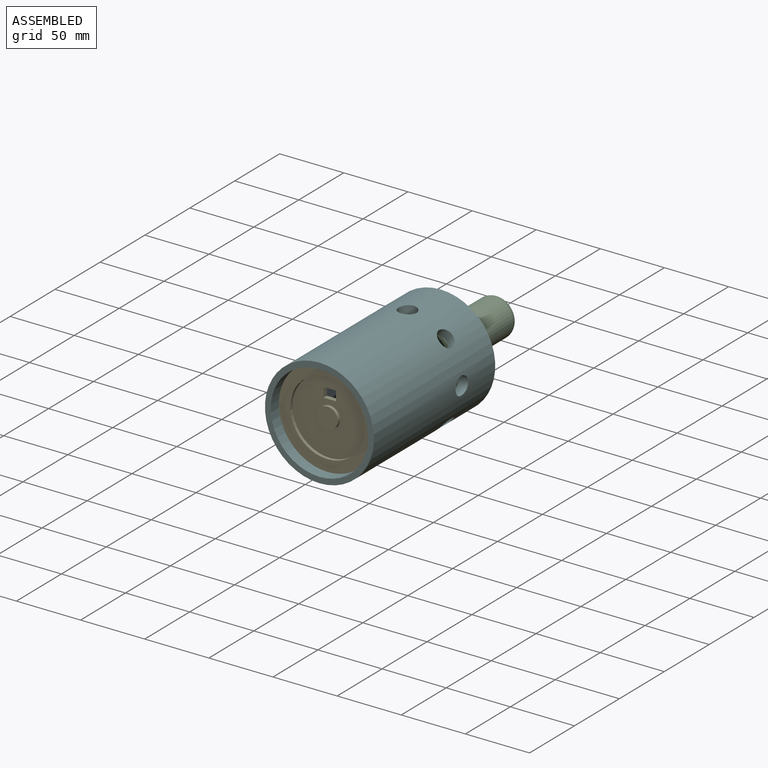
[diagram: assembled view]
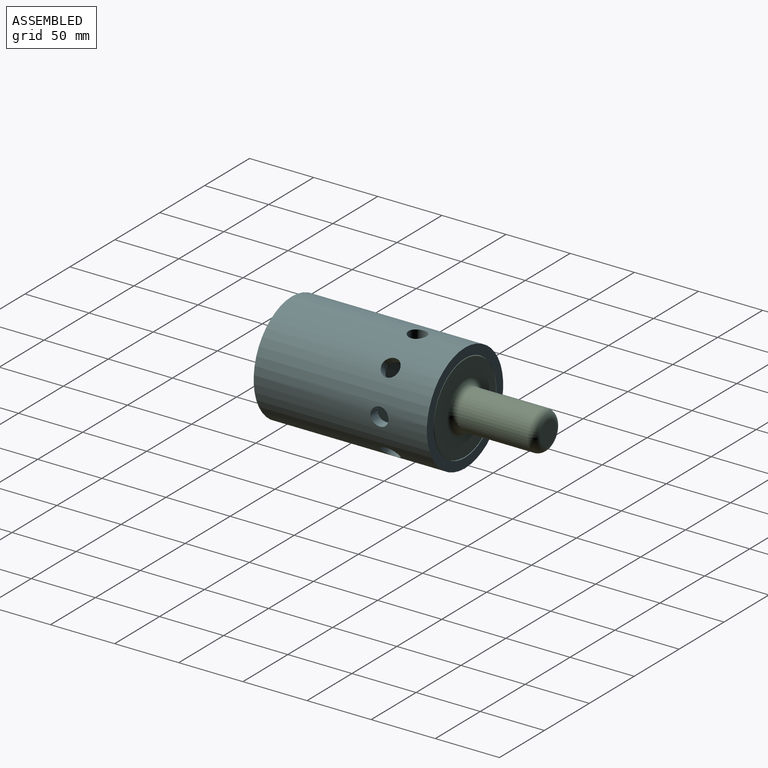
[diagram: assembled view, second angle]
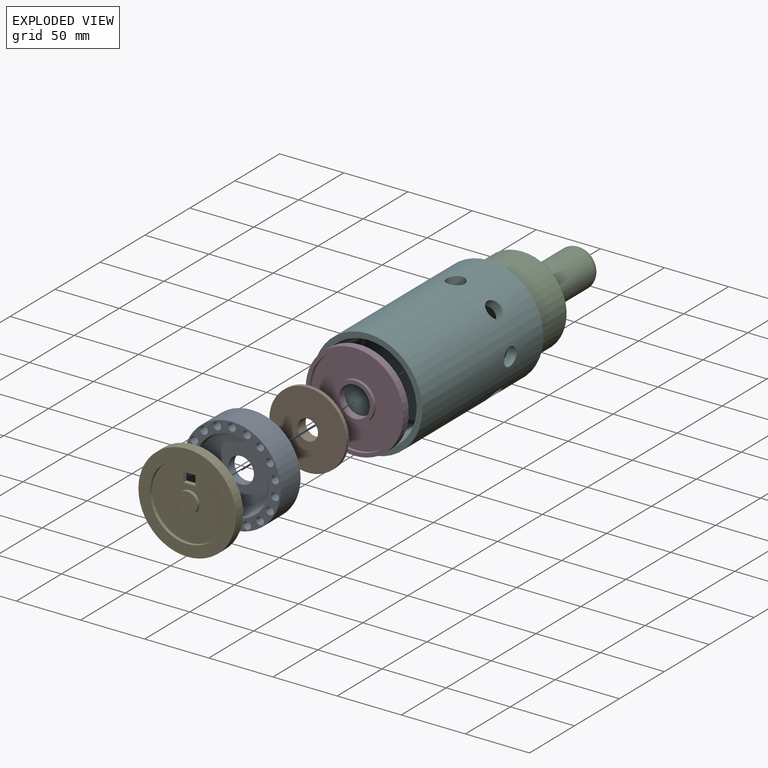
[diagram: exploded view]
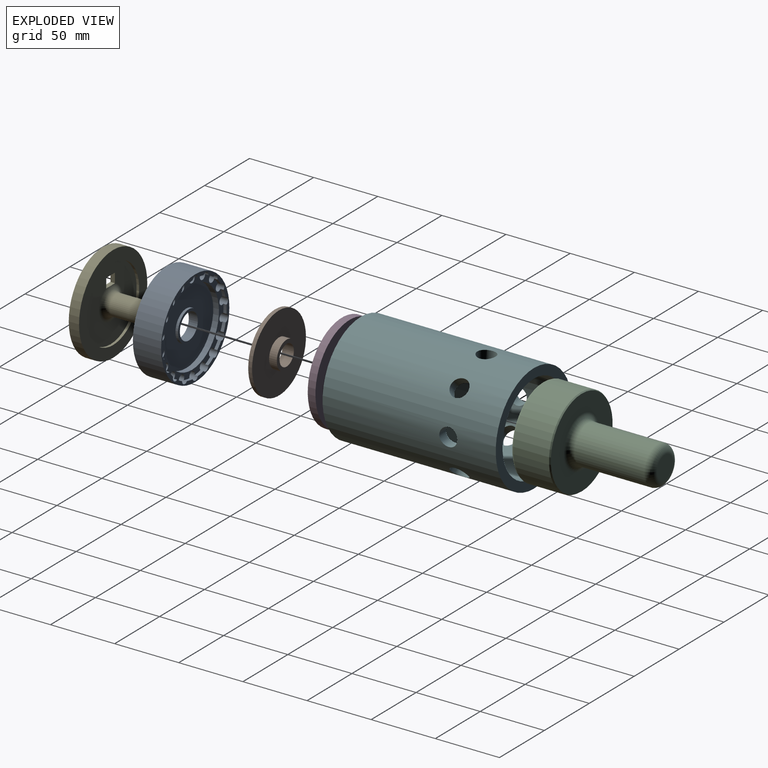
[diagram: exploded view, second angle]
ASSEMBLY  parts=6 mates=5
PART A: 48 faces, bbox 76x22x76 mm
  f0: plane 76x76mm, normal (0,1,0), area 535.5mm2, adj f1,f2,f3,f4,f5,f6,f7,f8
  f1: cylinder r=35mm len=5.6mm, axis (0,-1,0), area 16.2mm2, adj f0,f28,f46,f47
  f2: cylinder r=35mm len=4.95mm, axis (0,-1,0), area 16.2mm2, adj f0,f28,f45,f46
  f3: cylinder r=35mm len=6.08mm, axis (0,-1,0), area 16.2mm2, adj f0,f28,f44,f45
  f4: cylinder r=35mm len=6.47mm, axis (0,-1,0), area 16.2mm2, adj f0,f28,f43,f44
  f5: cylinder r=35mm len=6.08mm, axis (0,-1,0), area 16.2mm2, adj f0,f28,f42,f43
  f6: cylinder r=35mm len=4.95mm, axis (0,-1,0), area 16.2mm2, adj f0,f28,f41,f42
  f7: cylinder r=35mm len=5.6mm, axis (0,-1,0), area 16.2mm2, adj f0,f28,f40,f41
  f8: cylinder r=35mm len=6.37mm, axis (0,-1,0), area 16.2mm2, adj f0,f28,f39,f40
  f9: cylinder r=35mm len=6.37mm, axis (0,-1,0), area 16.2mm2, adj f0,f28,f38,f39
  f10: cylinder r=35mm len=5.6mm, axis (0,-1,0), area 16.2mm2, adj f0,f28,f37,f38
  f11: cylinder r=35mm len=4.95mm, axis (0,-1,0), area 16.2mm2, adj f0,f28,f36,f37
  f12: cylinder r=35mm len=6.08mm, axis (0,-1,0), area 16.2mm2, adj f0,f28,f35,f36
  f13: cylinder r=35mm len=6.47mm, axis (0,-1,0), area 16.2mm2, adj f0,f28,f34,f35
  f14: cylinder r=35mm len=6.08mm, axis (0,-1,0), area 16.2mm2, adj f0,f28,f33,f34
  f15: cylinder r=35mm len=4.95mm, axis (0,-1,0), area 16.2mm2, adj f0,f28,f32,f33
  f16: cylinder r=35mm len=5.6mm, axis (0,-1,0), area 16.2mm2, adj f0,f28,f31,f32
  f17: cylinder r=35mm len=6.37mm, axis (0,-1,0), area 16.2mm2, adj f0,f28,f30,f31
  f18: cylinder r=38mm len=76mm, axis (0,-1,0), area 5252.7mm2, adj f0,f19
  f19: plane 76x76mm, normal (0,-1,0), area 1385.4mm2, adj f18,f20,f30,f31,f32,f33,f34,f35
  f20: cylinder r=29mm len=58mm, axis (0,-1,0), area 911.1mm2, adj f19,f21
  f21: torus R=24mm, axis (0,-1,0), area 1341.4mm2, adj f20,f22
  f22: plane 48x48mm, normal (0,-1,0), area 1495.4mm2, adj f21,f23
  f23: cylinder r=10mm len=20mm, axis (0,-1,0), area 439.8mm2, adj f22,f24
  f24: plane 24x24mm, normal (0,1,0), area 138.2mm2, adj f23,f25
  f25: cylinder r=12mm len=24mm, axis (0,-1,0), area 150.8mm2, adj f24,f26
  f26: plane 60x60mm, normal (0,1,0), area 2375mm2, adj f25,f27
  f27: cylinder r=30mm len=60mm, axis (0,-1,0), area 848.2mm2, adj f26,f28
  f28: plane 70x69.76mm, normal (0,1,0), area 664.5mm2, adj f1,f2,f3,f4,f5,f6,f7,f8
  f29: cylinder r=35mm len=6.37mm, axis (0,-1,0), area 16.2mm2, adj f0,f28,f30,f47
  f30: cylinder r=3mm len=22mm, axis (0,-1,0), area 386.7mm2, adj f0,f17,f19,f28,f29
  f31: cylinder r=3mm len=22mm, axis (0,-1,0), area 386.7mm2, adj f0,f16,f17,f19,f28
  f32: cylinder r=3mm len=22mm, axis (0,-1,0), area 386.7mm2, adj f0,f15,f16,f19,f28
  f33: cylinder r=3mm len=22mm, axis (0,-1,0), area 386.7mm2, adj f0,f14,f15,f19,f28
  f34: cylinder r=3mm len=22mm, axis (0,-1,0), area 386.7mm2, adj f0,f13,f14,f19,f28
  f35: cylinder r=3mm len=22mm, axis (0,-1,0), area 386.7mm2, adj f0,f12,f13,f19,f28
  f36: cylinder r=3mm len=22mm, axis (0,-1,0), area 386.7mm2, adj f0,f11,f12,f19,f28
  f37: cylinder r=3mm len=22mm, axis (0,-1,0), area 386.7mm2, adj f0,f10,f11,f19,f28
  f38: cylinder r=3mm len=22mm, axis (0,-1,0), area 386.7mm2, adj f0,f9,f10,f19,f28
  f39: cylinder r=3mm len=22mm, axis (0,-1,0), area 386.7mm2, adj f0,f8,f9,f19,f28
  f40: cylinder r=3mm len=22mm, axis (0,-1,0), area 386.7mm2, adj f0,f7,f8,f19,f28
  f41: cylinder r=3mm len=22mm, axis (0,-1,0), area 386.7mm2, adj f0,f6,f7,f19,f28
  f42: cylinder r=3mm len=22mm, axis (0,-1,0), area 386.7mm2, adj f0,f5,f6,f19,f28
  f43: cylinder r=3mm len=22mm, axis (0,-1,0), area 386.7mm2, adj f0,f4,f5,f19,f28
  f44: cylinder r=3mm len=22mm, axis (0,-1,0), area 386.7mm2, adj f0,f3,f4,f19,f28
  f45: cylinder r=3mm len=22mm, axis (0,-1,0), area 386.7mm2, adj f0,f2,f3,f19,f28
  f46: cylinder r=3mm len=22mm, axis (0,-1,0), area 386.7mm2, adj f0,f1,f2,f19,f28
  f47: cylinder r=3mm len=22mm, axis (0,-1,0), area 386.7mm2, adj f0,f1,f19,f28,f29
PART B: 6 faces, bbox 60x9x60 mm
  f0: plane 60x60mm, normal (0,-1,0), area 2626.4mm2, adj f1,f5
  f1: cylinder r=8mm len=16mm, axis (0,1,0), area 452.4mm2, adj f0,f2
  f2: plane 22x22mm, normal (0,1,0), area 179.1mm2, adj f1,f3
  f3: cylinder r=11mm len=22mm, axis (0,1,0), area 414.7mm2, adj f2,f4
  f4: plane 60x60mm, normal (0,1,0), area 2447.3mm2, adj f3,f5
  f5: cylinder r=30mm len=60mm, axis (0,1,0), area 565.5mm2, adj f0,f4
PART C: 13 faces, bbox 70x95x70 mm
  f0: plane 68.85x68.85mm, normal (0,-1,0), area 559.2mm2, adj f10,f12
  f1: cylinder r=30mm len=60mm, axis (0,-1,0), area 2638.9mm2, adj f2,f10
  f2: torus R=25mm, axis (0,-1,0), area 1390.8mm2, adj f1,f3
  f3: plane 50x50mm, normal (0,-1,0), area 1963.5mm2, adj f2
  f4: plane 18x18mm, normal (0,1,0), area 254.5mm2, adj f5
  f5: torus R=9mm, axis (0,-1,0), area 759.2mm2, adj f4,f6
  f6: cylinder r=15mm len=54mm, axis (0,-1,0), area 5089.4mm2, adj f5,f7
  f7: torus R=20mm, axis (0,-1,0), area 829.9mm2, adj f6,f8
  f8: plane 68.85x68.85mm, normal (0,1,0), area 2465.9mm2, adj f7,f11
  f9: cylinder r=35mm len=70mm, axis (0,-1,0), area 6157.5mm2, adj f11,f12
  f10: cone r=30mm half-angle=30deg, axis (0,-1,0), area 671.8mm2, adj f0,f1
  f11: cone r=35mm half-angle=30deg, axis (0,-1,0), area 251.8mm2, adj f8,f9
  f12: cone r=34.42mm half-angle=30deg, axis (0,1,0), area 251.8mm2, adj f0,f9
PART D: 8 faces, bbox 76x6x76 mm
  f0: plane 76x76mm, normal (0,1,0), area 4084.1mm2, adj f1,f7
  f1: cylinder r=38mm len=76mm, axis (0,-1,0), area 1432.6mm2, adj f0,f2
  f2: plane 76x76mm, normal (0,-1,0), area 688mm2, adj f1,f3
  f3: cylinder r=35mm len=70mm, axis (0,-1,0), area 549.8mm2, adj f2,f4
  f4: plane 70x70mm, normal (0,-1,0), area 3141.6mm2, adj f3,f5
  f5: cylinder r=15mm len=30mm, axis (0,-1,0), area 235.6mm2, adj f4,f6
  f6: plane 30x30mm, normal (0,-1,0), area 254.5mm2, adj f5,f7
  f7: cylinder r=12mm len=24mm, axis (0,-1,0), area 452.4mm2, adj f0,f6
PART E: 16 faces, bbox 76x36x76 mm
  f0: torus R=13mm, axis (0,-1,0), area 479.3mm2, adj f1,f3,f15
  f1: plane 58x58mm, normal (0,1,0), area 2044.1mm2, adj f0,f4,f12,f13,f14,f15
  f2: plane 58x58mm, normal (0,-1,0), area 2368.8mm2, adj f8,f9,f12,f13,f14,f15
  f3: cylinder r=8mm len=25mm, axis (0,-1,0), area 1256.6mm2, adj f0,f11
  f4: cylinder r=29mm len=58mm, axis (0,-1,0), area 364.4mm2, adj f1,f5
  f5: plane 76x76mm, normal (0,1,0), area 1894.4mm2, adj f4,f6
  f6: cylinder r=38mm len=76mm, axis (0,-1,0), area 1910.1mm2, adj f5,f7
  f7: plane 76x76mm, normal (0,-1,0), area 1890.9mm2, adj f6,f8
  f8: cone r=29.02mm half-angle=0.4deg, axis (0,-1,0), area 455.7mm2, adj f2,f7
  f9: cylinder r=8mm len=16mm, axis (0,-1,0), area 125.7mm2, adj f2,f10
  f10: plane 16x16mm, normal (0,-1,0), area 201.1mm2, adj f9
  f11: plane 16x16mm, normal (0,1,0), area 201.1mm2, adj f3
  f12: plane 7.45x3.5mm, normal (-1,0,0), area 26.1mm2, adj f1,f2,f13,f15
  f13: plane 9.7x3.5mm, normal (0,0,-1), area 33.9mm2, adj f1,f2,f12,f14
  f14: plane 7.45x3.5mm, normal (1,0,0), area 26.1mm2, adj f1,f2,f13,f15
  f15: plane 9.7x3.57mm, normal (0,0,1), area 34.3mm2, adj f0,f1,f2,f12,f14
PART F: 14 faces, bbox 85x135x85 mm
  f0: cylinder r=38mm len=76mm, axis (0,-1,0), area 10744.2mm2, adj f1,f5
  f1: plane 76x76mm, normal (0,-1,0), area 688mm2, adj f0,f2
  f2: cylinder r=35mm len=90mm, axis (0,-1,0), area 18557.5mm2, adj f1,f3,f6,f7,f8,f9,f10,f11
  f3: plane 85x85mm, normal (0,1,0), area 1826.1mm2, adj f2,f4
  f4: cylinder r=42.5mm len=135mm, axis (0,-1,0), area 34816.3mm2, adj f3,f5,f6,f7,f8,f9,f10,f11
  f5: plane 85x85mm, normal (0,-1,0), area 1138mm2, adj f0,f4
  f6: cylinder r=7mm len=14mm, axis (1,0,0), area 332.6mm2, adj f2,f4
  f7: cylinder r=7mm len=15.7mm, axis (0.71,0,-0.71), area 332.6mm2, adj f2,f4
  f8: cylinder r=7mm len=14mm, axis (0,0,-1), area 332.6mm2, adj f2,f4
  f9: cylinder r=7mm len=15.7mm, axis (-0.71,0,-0.71), area 332.6mm2, adj f2,f4
  f10: cylinder r=7mm len=14mm, axis (-1,0,0), area 332.6mm2, adj f2,f4
  f11: cylinder r=7mm len=15.7mm, axis (-0.71,0,0.71), area 332.6mm2, adj f2,f4
  f12: cylinder r=7mm len=14mm, axis (0,0,1), area 332.6mm2, adj f2,f4
  f13: cylinder r=7mm len=15.7mm, axis (0.71,0,0.71), area 332.6mm2, adj f2,f4
PLACE A t=(10.75,-4.37,17.88)mm
PLACE B t=(10.75,-4.37,17.88)mm
PLACE C t=(10.75,55.63,17.88)mm
PLACE D t=(10.75,-4.37,17.88)mm
PLACE E t=(10.75,-4.37,17.88)mm
PLACE F t=(10.75,-4.37,17.88)mm fixed
MATE fastened D.f1 <-> A.f1  axis (0,-1,0) through (10.75,-10.37,17.88)mm
MATE fastened A.f1 <-> E.f0  axis (0,-1,0) through (10.75,-32.37,17.88)mm
MATE slider D.f1 <-> B.f1  axis (0,-1,0) through (10.75,-10.37,17.88)mm
MATE fastened F.f0 <-> D.f1  axis (0,-1,0) through (10.75,-4.37,17.88)mm
MATE slider F.f0 <-> C.f1  axis (0,1,0) through (10.75,85.63,17.88)mm
